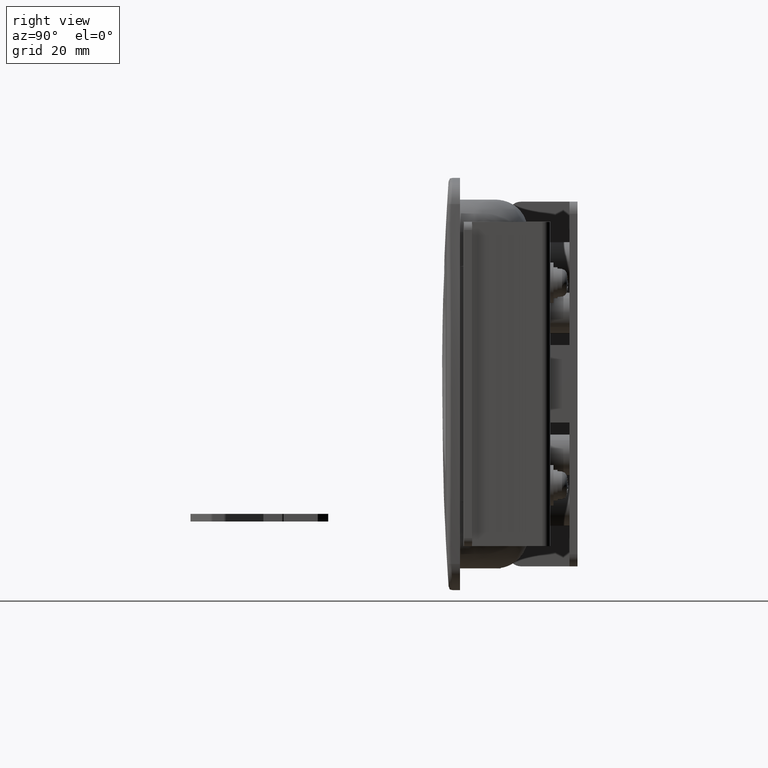
[diagram: clean part render]
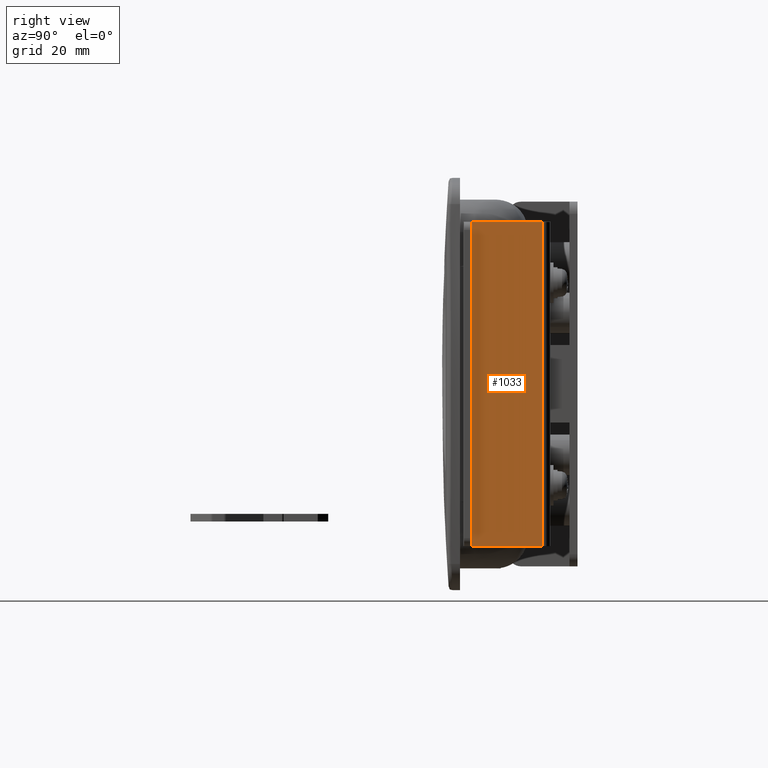
[diagram: same view with one face highlighted and labeled with its STEP entity id]
A machine part, right view. The second image highlights one B-rep face of the part: STEP entity #1033.
In plain terms, the highlighted face is a freeform B-spline surface patch.
Its self-contained STEP definition (entity closure, byte-faithful):
#911=CARTESIAN_POINT('',(38.357708607132899,-26.196883736419199,40.0));
#912=VERTEX_POINT('',#911);
#918=CARTESIAN_POINT('',(37.954550177541599,-8.700527993561110,40.0));
#919=VERTEX_POINT('',#918);
#920=CARTESIAN_POINT('',(38.357708607132899,-26.196883736419199,40.0));
#921=CARTESIAN_POINT('',(37.954550177541599,-8.700527993561110,40.0));
#922=QUASI_UNIFORM_CURVE('',1,(#920,#921),.UNSPECIFIED.,.F.,.U.);
#923=EDGE_CURVE('',#912,#919,#922,.T.);
#960=CARTESIAN_POINT('',(37.954550177541599,-8.700527993561110,-39.999699999999997));
#961=VERTEX_POINT('',#960);
#973=CARTESIAN_POINT('',(38.357708607132899,-26.196883736419199,-39.999699999999997));
#974=VERTEX_POINT('',#973);
#975=CARTESIAN_POINT('',(38.357708607132899,-26.196883736419199,-39.999699999999997));
#976=CARTESIAN_POINT('',(37.954550177541599,-8.700527993561110,-39.999699999999997));
#977=QUASI_UNIFORM_CURVE('',1,(#975,#976),.UNSPECIFIED.,.F.,.U.);
#978=EDGE_CURVE('',#974,#961,#977,.T.);
#1014=CARTESIAN_POINT('',(38.377846381263268,-27.070827164593439,-43.995683357985172));
#1015=CARTESIAN_POINT('',(37.934412403411230,-7.826584565386871,-43.995683357985172));
#1016=CARTESIAN_POINT('',(38.377846381263268,-27.070827164593439,43.995986934250453));
#1017=CARTESIAN_POINT('',(37.934412403411230,-7.826584565386871,43.995986934250453));
#1018=B_SPLINE_SURFACE_WITH_KNOTS('',1,1,((#1014,#1016),(#1015,#1017)),.UNSPECIFIED.,.F.,.F.,.U.,(2,2),(2,2),(0.0,19.249350817880341),(0.0,87.991670292235611),.UNSPECIFIED.);
#1019=ORIENTED_EDGE('',*,*,#923,.F.);
#1020=CARTESIAN_POINT('',(38.357708607132899,-26.196883736419199,-39.999699999999997));
#1021=CARTESIAN_POINT('',(38.357708607132899,-26.196883736419199,40.0));
#1022=QUASI_UNIFORM_CURVE('',1,(#1020,#1021),.UNSPECIFIED.,.F.,.U.);
#1023=EDGE_CURVE('',#974,#912,#1022,.T.);
#1024=ORIENTED_EDGE('',*,*,#1023,.F.);
#1025=ORIENTED_EDGE('',*,*,#978,.T.);
#1026=CARTESIAN_POINT('',(37.954550177541599,-8.700527993561110,-39.999699999999997));
#1027=CARTESIAN_POINT('',(37.954550177541599,-8.700527993561110,40.0));
#1028=QUASI_UNIFORM_CURVE('',1,(#1026,#1027),.UNSPECIFIED.,.F.,.U.);
#1029=EDGE_CURVE('',#961,#919,#1028,.T.);
#1030=ORIENTED_EDGE('',*,*,#1029,.T.);
#1031=EDGE_LOOP('',(#1019,#1024,#1025,#1030));
#1032=FACE_OUTER_BOUND('',#1031,.T.);
#1033=ADVANCED_FACE('',(#1032),#1018,.T.);